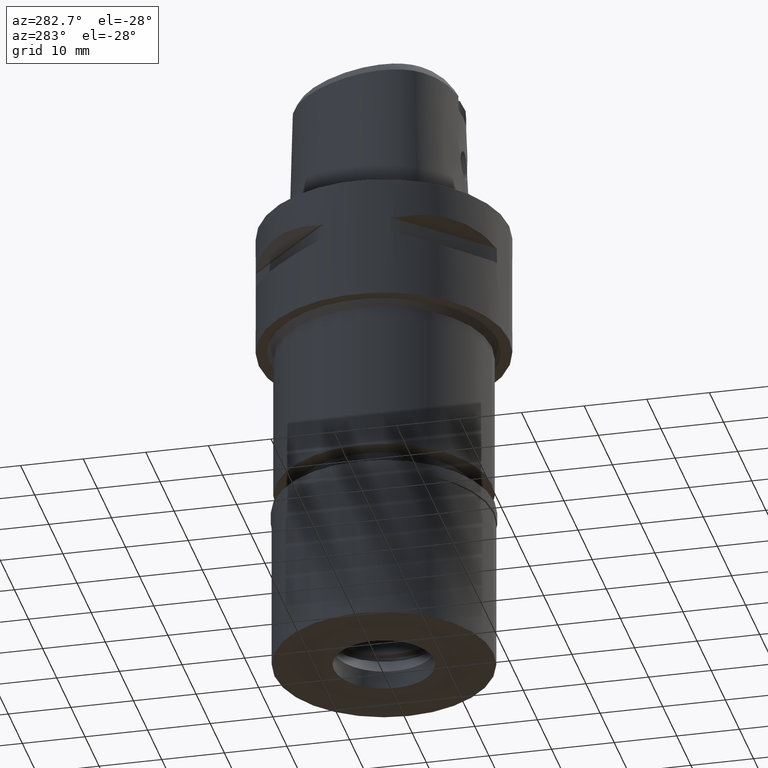
[diagram: clean part render]
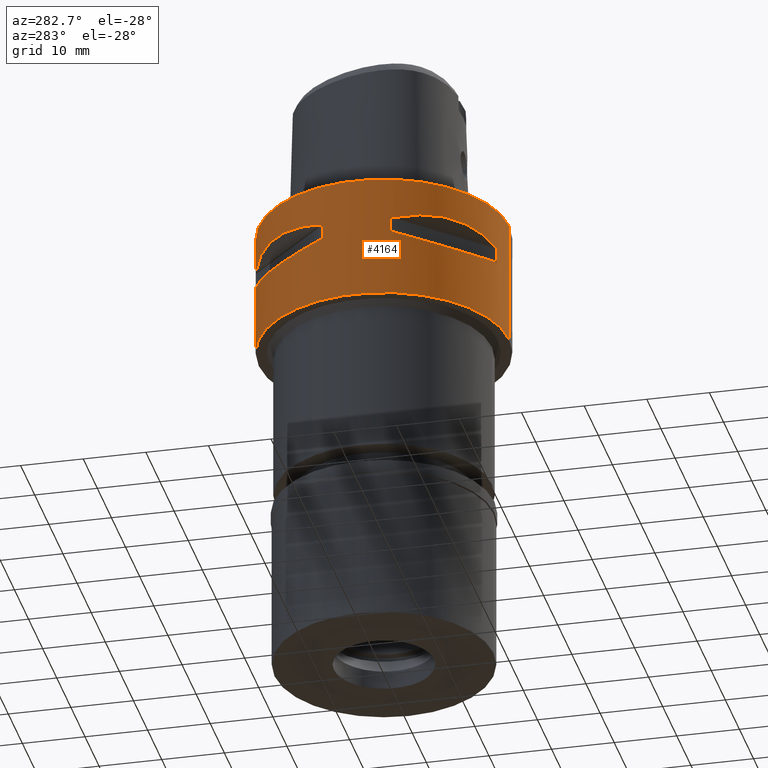
[diagram: same view with one face highlighted and labeled with its STEP entity id]
A machine part, auxiliary view. The second image highlights one B-rep face of the part: STEP entity #4164.
In plain terms, the highlighted cylindrical surface (partial cylindrical patch) has radius 20 mm, axis along (0, 0, -1).
Its self-contained STEP definition (entity closure, byte-faithful):
#16 = VERTEX_POINT ( 'NONE', #1513 ) ;
#75 = VECTOR ( 'NONE', #3698, 1000.000000000000000 ) ;
#76 = CARTESIAN_POINT ( 'NONE',  ( -11.83046278585409539, 16.20025983931430247, -10.49456541975229840 ) ) ;
#125 = CARTESIAN_POINT ( 'NONE',  ( 0.0000000000000000000, 1.263835496719999960E-14, -9.299999999999998934 ) ) ;
#136 = CYLINDRICAL_SURFACE ( 'NONE', #2739, 20.00000000000000000 ) ;
#142 = CARTESIAN_POINT ( 'NONE',  ( -10.52654956716422063, -17.00564674891198891, -10.29104290631413221 ) ) ;
#156 = EDGE_CURVE ( 'NONE', #3569, #4186, #1717, .T. ) ;
#169 = EDGE_CURVE ( 'NONE', #3245, #4186, #3267, .T. ) ;
#199 = EDGE_CURVE ( 'NONE', #3991, #3245, #2844, .T. ) ;
#239 = VERTEX_POINT ( 'NONE', #3964 ) ;
#307 = DIRECTION ( 'NONE',  ( 0.0000000000000000000, 0.0000000000000000000, 1.000000000000000000 ) ) ;
#313 = AXIS2_PLACEMENT_3D ( 'NONE', #125, #4508, #2671 ) ;
#337 = DIRECTION ( 'NONE',  ( 0.0000000000000000000, 0.0000000000000000000, -1.000000000000000000 ) ) ;
#351 = CARTESIAN_POINT ( 'NONE',  ( 0.0000000000000000000, 1.263835496719999960E-14, -9.299999999999998934 ) ) ;
#371 = AXIS2_PLACEMENT_3D ( 'NONE', #351, #1831, #1807 ) ;
#430 = EDGE_CURVE ( 'NONE', #3867, #2170, #3489, .T. ) ;
#440 = CIRCLE ( 'NONE', #371, 20.00000000000000000 ) ;
#462 = CARTESIAN_POINT ( 'NONE',  ( -16.96779488243643641, 10.58740791271516279, -10.30043526206624982 ) ) ;
#482 = CARTESIAN_POINT ( 'NONE',  ( -5.428966298579000593, -19.24906036483000094, -9.299999999999998934 ) ) ;
#518 = DIRECTION ( 'NONE',  ( 0.0000000000000000000, 0.0000000000000000000, -1.000000000000000000 ) ) ;
#523 = CARTESIAN_POINT ( 'NONE',  ( -17.04620345718620200, -10.46079808215881357, -10.28075718178500608 ) ) ;
#527 = CIRCLE ( 'NONE', #4732, 20.00000000000000711 ) ;
#535 = VERTEX_POINT ( 'NONE', #2296 ) ;
#555 = ORIENTED_EDGE ( 'NONE', *, *, #430, .T. ) ;
#612 = VERTEX_POINT ( 'NONE', #2732 ) ;
#618 = EDGE_LOOP ( 'NONE', ( #1867, #1719, #3532, #1725, #1589, #2046, #719, #2837 ) ) ;
#632 = CARTESIAN_POINT ( 'NONE',  ( -19.06685920573999837, 6.037787676659999825, -9.299999999999998934 ) ) ;
#665 = CIRCLE ( 'NONE', #809, 20.00000000000000000 ) ;
#677 = ORIENTED_EDGE ( 'NONE', *, *, #156, .F. ) ;
#685 = DIRECTION ( 'NONE',  ( 0.0000000000000000000, 0.0000000000000000000, -1.000000000000000000 ) ) ;
#710 = CARTESIAN_POINT ( 'NONE',  ( -19.24906036483000094, -5.428966298579000593, -9.299999999999998934 ) ) ;
#719 = ORIENTED_EDGE ( 'NONE', *, *, #1669, .T. ) ;
#754 = CARTESIAN_POINT ( 'NONE',  ( -19.06685920573999837, 6.037787676659999825, -6.700000000000000178 ) ) ;
#777 = CIRCLE ( 'NONE', #1290, 20.00000000000000000 ) ;
#808 = DIRECTION ( 'NONE',  ( -0.3018893838328123858, 0.9533429602871387187, 0.0000000000000000000 ) ) ;
#809 = AXIS2_PLACEMENT_3D ( 'NONE', #1204, #4587, #870 ) ;
#818 = CARTESIAN_POINT ( 'NONE',  ( -17.07309310408707148, -10.41688921769623910, -10.27380911531041008 ) ) ;
#870 = DIRECTION ( 'NONE',  ( -0.9624530182415160784, -0.2714483149290045083, 0.0000000000000000000 ) ) ;
#881 = CARTESIAN_POINT ( 'NONE',  ( -13.59286613331923554, -14.69143800708852154, -10.59808963984202279 ) ) ;
#897 = DIRECTION ( 'NONE',  ( 0.0000000000000000000, -1.000000000000000000, 0.0000000000000000000 ) ) ;
#902 = CARTESIAN_POINT ( 'NONE',  ( -17.00564674891200312, 10.52654956716414603, -10.29104290631410557 ) ) ;
#928 = DIRECTION ( 'NONE',  ( 0.0000000000000000000, 0.0000000000000000000, -1.000000000000000000 ) ) ;
#968 = VECTOR ( 'NONE', #307, 1000.000000000000000 ) ;
#997 = CIRCLE ( 'NONE', #2056, 20.00000000000000711 ) ;
#1012 = CARTESIAN_POINT ( 'NONE',  ( 0.0000000000000000000, 1.263835496719999960E-14, -6.700000000000000178 ) ) ;
#1057 = VERTEX_POINT ( 'NONE', #1118 ) ;
#1118 = CARTESIAN_POINT ( 'NONE',  ( -6.037787676659999825, -19.06685920573999837, -6.700000000000000178 ) ) ;
#1121 = LINE ( 'NONE', #482, #75 ) ;
#1131 = CARTESIAN_POINT ( 'NONE',  ( -9.064227960972592868, 17.89933467640223697, -5.942799019125478033 ) ) ;
#1153 = CARTESIAN_POINT ( 'NONE',  ( -13.04353085700981651, 15.24067460454939038, -10.59804935437078477 ) ) ;
#1168 = CARTESIAN_POINT ( 'NONE',  ( -17.20615142661377206, -10.19668967435975304, -10.23823386088587561 ) ) ;
#1170 = ORIENTED_EDGE ( 'NONE', *, *, #199, .T. ) ;
#1191 = CARTESIAN_POINT ( 'NONE',  ( -6.037787676659999825, -19.06685920573999837, -9.299999999999998934 ) ) ;
#1204 = CARTESIAN_POINT ( 'NONE',  ( 0.0000000000000000000, 1.263835496719999960E-14, -6.700000000000000178 ) ) ;
#1215 = CARTESIAN_POINT ( 'NONE',  ( -7.974729623730985040, 18.37435100509567221, -9.808037949573455094 ) ) ;
#1219 = CARTESIAN_POINT ( 'NONE',  ( -16.23560874352833139, -11.78776565399050646, -5.510106948687923278 ) ) ;
#1220 = EDGE_CURVE ( 'NONE', #1299, #535, #3932, .T. ) ;
#1238 = EDGE_CURVE ( 'NONE', #3867, #2199, #3461, .T. ) ;
#1251 = CARTESIAN_POINT ( 'NONE',  ( 0.0000000000000000000, 1.263835496719999960E-14, 1.110223024624999873E-14 ) ) ;
#1260 = CARTESIAN_POINT ( 'NONE',  ( -17.88526274347858447, 9.102657680285229702, -10.06884320373687380 ) ) ;
#1262 = VERTEX_POINT ( 'NONE', #3891 ) ;
#1290 = AXIS2_PLACEMENT_3D ( 'NONE', #1251, #4182, #897 ) ;
#1299 = VERTEX_POINT ( 'NONE', #1676 ) ;
#1304 = FACE_BOUND ( 'NONE', #4502, .T. ) ;
#1317 = CARTESIAN_POINT ( 'NONE',  ( -19.06685920573999837, -6.037787676659999825, -6.700000000000000178 ) ) ;
#1353 = VERTEX_POINT ( 'NONE', #1649 ) ;
#1357 = ORIENTED_EDGE ( 'NONE', *, *, #1238, .F. ) ;
#1374 = DIRECTION ( 'NONE',  ( 0.0000000000000000000, 0.0000000000000000000, 1.000000000000000000 ) ) ;
#1403 = VERTEX_POINT ( 'NONE', #4380 ) ;
#1476 = LINE ( 'NONE', #3929, #968 ) ;
#1513 = CARTESIAN_POINT ( 'NONE',  ( -5.428966298579000593, 19.24906036483000094, -6.700000000000000178 ) ) ;
#1538 = CARTESIAN_POINT ( 'NONE',  ( -11.64036391732772024, -16.27164763637228262, -10.44610182776619567 ) ) ;
#1555 = CARTESIAN_POINT ( 'NONE',  ( -14.69143800708833680, 13.59286613331856408, -10.59808963984166041 ) ) ;
#1577 = CARTESIAN_POINT ( 'NONE',  ( -6.037787676656000357, 19.06685920573999837, -9.299999999999998934 ) ) ;
#1589 = ORIENTED_EDGE ( 'NONE', *, *, #4591, .T. ) ;
#1604 = CARTESIAN_POINT ( 'NONE',  ( -17.03197491928961327, -10.48392761238962478, -10.28439099668888623 ) ) ;
#1622 = CARTESIAN_POINT ( 'NONE',  ( -10.58740791271525161, -16.96779488243645773, -10.30043526206630844 ) ) ;
#1629 = CARTESIAN_POINT ( 'NONE',  ( -5.428966298580000682, -19.24906036483000094, -9.299999999999998934 ) ) ;
#1648 = VECTOR ( 'NONE', #3256, 1000.000000000000000 ) ;
#1649 = CARTESIAN_POINT ( 'NONE',  ( -19.06685920573999837, -6.037787676659999825, -6.700000000000000178 ) ) ;
#1654 = CARTESIAN_POINT ( 'NONE',  ( -15.24842641771629914, -13.03584482974558689, -5.401930550046035506 ) ) ;
#1669 = EDGE_CURVE ( 'NONE', #1403, #1353, #665, .T. ) ;
#1676 = CARTESIAN_POINT ( 'NONE',  ( -19.06685920573999837, -6.037787676656000357, -9.299999999999998934 ) ) ;
#1703 = LINE ( 'NONE', #2307, #3417 ) ;
#1717 = LINE ( 'NONE', #4313, #4701 ) ;
#1719 = ORIENTED_EDGE ( 'NONE', *, *, #4441, .F. ) ;
#1725 = ORIENTED_EDGE ( 'NONE', *, *, #1220, .F. ) ;
#1732 = CARTESIAN_POINT ( 'NONE',  ( -19.06685920573999837, 6.037787676659999825, -9.299999999999998934 ) ) ;
#1734 = B_SPLINE_CURVE_WITH_KNOTS ( 'NONE', 3,
 ( #1317, #2333, #4219, #1219, #1654, #3474, #4244, #2719, #2410, #4147 ),
 .UNSPECIFIED., .F., .F.,
 ( 4, 2, 2, 2, 4 ),
 ( 0.0000000000000000000, 0.2500000000000000000, 0.5000000000000000000, 0.7500000000000000000, 1.000000000000000000 ),
 .UNSPECIFIED. ) ;
#1778 = DIRECTION ( 'NONE',  ( 0.0000000000000000000, 0.0000000000000000000, 1.000000000000000000 ) ) ;
#1790 = CARTESIAN_POINT ( 'NONE',  ( 0.0000000000000000000, 1.263835496719999960E-14, -20.00000000000000000 ) ) ;
#1807 = DIRECTION ( 'NONE',  ( -0.2714483149290045083, -0.9624530182415160784, 0.0000000000000000000 ) ) ;
#1823 = CARTESIAN_POINT ( 'NONE',  ( -11.78776565403157051, 16.23560874349853833, -5.510106948674475369 ) ) ;
#1831 = DIRECTION ( 'NONE',  ( 0.0000000000000000000, 0.0000000000000000000, -1.000000000000000000 ) ) ;
#1867 = ORIENTED_EDGE ( 'NONE', *, *, #4690, .T. ) ;
#1911 = CARTESIAN_POINT ( 'NONE',  ( -16.92907764914576774, 10.64933512883065347, -10.30991069787617676 ) ) ;
#1926 = CARTESIAN_POINT ( 'NONE',  ( -19.06685920573999837, -6.037787676656000357, -9.299999999999998934 ) ) ;
#1948 = CARTESIAN_POINT ( 'NONE',  ( -18.81740308416140905, -6.825550513455381996, -9.519762796231688640 ) ) ;
#1968 = CARTESIAN_POINT ( 'NONE',  ( 0.0000000000000000000, 1.263835496719999960E-14, -6.700000000000000178 ) ) ;
#2046 = ORIENTED_EDGE ( 'NONE', *, *, #3654, .F. ) ;
#2056 = AXIS2_PLACEMENT_3D ( 'NONE', #1968, #4540, #3442 ) ;
#2058 = CARTESIAN_POINT ( 'NONE',  ( -5.428966298579000593, 19.24906036483000094, -9.299999999999998934 ) ) ;
#2084 = VERTEX_POINT ( 'NONE', #4383 ) ;
#2114 = AXIS2_PLACEMENT_3D ( 'NONE', #1012, #1778, #3242 ) ;
#2170 = VERTEX_POINT ( 'NONE', #2058 ) ;
#2175 = CARTESIAN_POINT ( 'NONE',  ( -15.24842641774014318, 13.03584482972176772, -5.401917027256927462 ) ) ;
#2194 = DIRECTION ( 'NONE',  ( 0.0000000000000000000, 0.0000000000000000000, -1.000000000000000000 ) ) ;
#2199 = VERTEX_POINT ( 'NONE', #1732 ) ;
#2264 = CARTESIAN_POINT ( 'NONE',  ( -17.73693809362544371, -9.258624582134340031, -10.07196314004953308 ) ) ;
#2283 = CARTESIAN_POINT ( 'NONE',  ( -19.06685920573999837, 6.037787676659999825, -6.700000000000000178 ) ) ;
#2292 = EDGE_CURVE ( 'NONE', #239, #2514, #4715, .T. ) ;
#2296 = CARTESIAN_POINT ( 'NONE',  ( -6.037787676659999825, -19.06685920573999837, -9.299999999999998934 ) ) ;
#2303 = CARTESIAN_POINT ( 'NONE',  ( -17.38810193308528795, -9.886368560434451780, -10.18582677984705676 ) ) ;
#2307 = CARTESIAN_POINT ( 'NONE',  ( -19.24906036483000094, -5.428966298579000593, -6.700000000000000178 ) ) ;
#2328 = CARTESIAN_POINT ( 'NONE',  ( -17.11329306682763018, -10.35096251251622235, -10.26330621669029242 ) ) ;
#2333 = CARTESIAN_POINT ( 'NONE',  ( -18.57571147348060947, -7.588793634759330331, -6.267314691167783280 ) ) ;
#2360 = DIRECTION ( 'NONE',  ( -0.3018893838328123858, -0.9533429602871387187, 0.0000000000000000000 ) ) ;
#2410 = CARTESIAN_POINT ( 'NONE',  ( -7.588842109437766048, -18.57569612329560726, -6.267301168149964852 ) ) ;
#2415 = CIRCLE ( 'NONE', #4063, 20.00000000000000000 ) ;
#2463 = ORIENTED_EDGE ( 'NONE', *, *, #169, .T. ) ;
#2466 = EDGE_LOOP ( 'NONE', ( #2463, #677, #3581, #1170 ) ) ;
#2514 = VERTEX_POINT ( 'NONE', #2283 ) ;
#2552 = ORIENTED_EDGE ( 'NONE', *, *, #3567, .F. ) ;
#2579 = CARTESIAN_POINT ( 'NONE',  ( -18.57569612330580711, 7.588842109405629088, -6.267301168158929237 ) ) ;
#2602 = CARTESIAN_POINT ( 'NONE',  ( -16.65304730897246444, 11.07873582669437340, -10.37252388421113025 ) ) ;
#2620 = CARTESIAN_POINT ( 'NONE',  ( -10.19668967435855222, 17.20615142661412733, -10.23823386088551501 ) ) ;
#2654 = CARTESIAN_POINT ( 'NONE',  ( -5.428966298579000593, 19.24906036483000094, -6.700000000000000178 ) ) ;
#2665 = CARTESIAN_POINT ( 'NONE',  ( -10.48392761238963189, 17.03197491928957419, -10.28439099668885959 ) ) ;
#2671 = DIRECTION ( 'NONE',  ( -0.9533429602871387187, -0.3018893838328123858, 0.0000000000000000000 ) ) ;
#2688 = CARTESIAN_POINT ( 'NONE',  ( -10.46079808215863771, 17.04620345718623753, -10.28075718178493858 ) ) ;
#2719 = CARTESIAN_POINT ( 'NONE',  ( -9.064296220490598799, -17.89930010960014428, -5.942778734612195635 ) ) ;
#2732 = CARTESIAN_POINT ( 'NONE',  ( -19.24906036483000094, 5.428966298579000593, -6.700000000000000178 ) ) ;
#2736 = FACE_BOUND ( 'NONE', #618, .T. ) ;
#2739 = AXIS2_PLACEMENT_3D ( 'NONE', #3078, #518, #4566 ) ;
#2742 = CARTESIAN_POINT ( 'NONE',  ( -18.56782271116713900, 7.613705726460239021, -9.739635053952877541 ) ) ;
#2815 = DIRECTION ( 'NONE',  ( 0.0000000000000000000, 0.0000000000000000000, 1.000000000000000000 ) ) ;
#2837 = ORIENTED_EDGE ( 'NONE', *, *, #3596, .T. ) ;
#2844 = LINE ( 'NONE', #3985, #1648 ) ;
#2876 = AXIS2_PLACEMENT_3D ( 'NONE', #1790, #2815, #3937 ) ;
#2928 = CARTESIAN_POINT ( 'NONE',  ( -7.588793634791460185, 18.57571147347045937, -6.267314691158818007 ) ) ;
#2962 = LINE ( 'NONE', #2654, #4263 ) ;
#2969 = EDGE_CURVE ( 'NONE', #16, #2170, #2962, .T. ) ;
#2997 = CARTESIAN_POINT ( 'NONE',  ( -16.27164763637202682, 11.64036391732682141, -10.44610182776571783 ) ) ;
#3039 = CARTESIAN_POINT ( 'NONE',  ( -10.79324770715592585, -16.83802176568588749, -10.33148935319455575 ) ) ;
#3063 = CARTESIAN_POINT ( 'NONE',  ( -10.64933512883080624, -16.92907764914579616, -10.30991069787626735 ) ) ;
#3071 = CARTESIAN_POINT ( 'NONE',  ( 0.0000000000000000000, 20.00000000000000000, 1.110223024624999873E-14 ) ) ;
#3078 = CARTESIAN_POINT ( 'NONE',  ( 0.0000000000000000000, 1.263835496719999960E-14, 3.200000000000000178 ) ) ;
#3088 = CARTESIAN_POINT ( 'NONE',  ( 0.0000000000000000000, 1.263835496719999960E-14, -6.700000000000000178 ) ) ;
#3103 = FACE_OUTER_BOUND ( 'NONE', #2466, .T. ) ;
#3137 = CARTESIAN_POINT ( 'NONE',  ( -16.99353821201610160, 10.54606745823076075, -10.29406776248773525 ) ) ;
#3241 = CARTESIAN_POINT ( 'NONE',  ( -17.89930010962307705, 9.064296220445354990, -5.942778734625640880 ) ) ;
#3242 = DIRECTION ( 'NONE',  ( -0.2714483149290045083, 0.9624530182415160784, 0.0000000000000000000 ) ) ;
#3245 = VERTEX_POINT ( 'NONE', #3541 ) ;
#3256 = DIRECTION ( 'NONE',  ( 0.0000000000000000000, 0.0000000000000000000, -1.000000000000000000 ) ) ;
#3267 = CIRCLE ( 'NONE', #2876, 20.00000000000000000 ) ;
#3279 = CARTESIAN_POINT ( 'NONE',  ( 0.0000000000000000000, -20.00000000000000000, 1.110223024624999873E-14 ) ) ;
#3320 = CARTESIAN_POINT ( 'NONE',  ( -6.037787676659999825, 19.06685920573999837, -6.700000000000000178 ) ) ;
#3361 = CARTESIAN_POINT ( 'NONE',  ( -9.258624582130485337, 17.73693809362665164, -10.07196314004843352 ) ) ;
#3402 = CARTESIAN_POINT ( 'NONE',  ( -10.41688921769588561, 17.07309310408716030, -10.27380911531028751 ) ) ;
#3411 = AXIS2_PLACEMENT_3D ( 'NONE', #4423, #2194, #808 ) ;
#3417 = VECTOR ( 'NONE', #928, 1000.000000000000000 ) ;
#3426 = CARTESIAN_POINT ( 'NONE',  ( -12.72622750481284903, -15.46304525447651734, -10.55929324096001487 ) ) ;
#3442 = DIRECTION ( 'NONE',  ( -0.9533429602871387187, 0.3018893838328123858, 0.0000000000000000000 ) ) ;
#3446 = CARTESIAN_POINT ( 'NONE',  ( -11.07873582669489920, -16.65304730897261010, -10.37252388421141269 ) ) ;
#3461 = B_SPLINE_CURVE_WITH_KNOTS ( 'NONE', 3,
 ( #1577, #4499, #1215, #3361, #4436, #2620, #4123, #3402, #2688, #2665, #76, #1153, #1555, #4098, #2997, #2602, #3749, #1911, #462, #3137, #902, #1260, #2742, #632 ),
 .UNSPECIFIED., .F., .F.,
 ( 4, 1, 1, 1, 1, 1, 2, 2, 2, 1, 1, 1, 1, 1, 2, 2, 4 ),
 ( 0.0000000000000000000, 0.1249999999999983069, 0.1874999999999973632, 0.2187499999999970857, 0.2343749999999968359, 0.2421874999999966138, 0.2460937499999967526, 0.2499999999999968914, 0.4999999999999934497, 0.6249999999999920064, 0.6874999999999913403, 0.7187499999999911182, 0.7343749999999910072, 0.7421874999999911182, 0.7460937499999913403, 0.7499999999999914513, 1.000000000000000000 ),
 .UNSPECIFIED. ) ;
#3474 = CARTESIAN_POINT ( 'NONE',  ( -13.03584482974559400, -15.24842641771629559, -5.401917027247962189 ) ) ;
#3489 = CIRCLE ( 'NONE', #3411, 20.00000000000000711 ) ;
#3525 = VERTEX_POINT ( 'NONE', #710 ) ;
#3532 = ORIENTED_EDGE ( 'NONE', *, *, #3554, .T. ) ;
#3541 = CARTESIAN_POINT ( 'NONE',  ( 0.0000000000000000000, 20.00000000000000000, -20.00000000000000000 ) ) ;
#3551 = ORIENTED_EDGE ( 'NONE', *, *, #3850, .T. ) ;
#3554 = EDGE_CURVE ( 'NONE', #4669, #535, #440, .T. ) ;
#3567 = EDGE_CURVE ( 'NONE', #1262, #612, #1476, .T. ) ;
#3569 = VERTEX_POINT ( 'NONE', #3279 ) ;
#3581 = ORIENTED_EDGE ( 'NONE', *, *, #4195, .T. ) ;
#3590 = CIRCLE ( 'NONE', #2114, 20.00000000000000000 ) ;
#3596 = EDGE_CURVE ( 'NONE', #1353, #1057, #1734, .T. ) ;
#3640 = ORIENTED_EDGE ( 'NONE', *, *, #4183, .T. ) ;
#3654 = EDGE_CURVE ( 'NONE', #1403, #3525, #1703, .T. ) ;
#3698 = DIRECTION ( 'NONE',  ( 0.0000000000000000000, 0.0000000000000000000, 1.000000000000000000 ) ) ;
#3728 = CARTESIAN_POINT ( 'NONE',  ( -7.613705726455988199, -18.56782271116848904, -9.739635053951699817 ) ) ;
#3738 = DIRECTION ( 'NONE',  ( 0.0000000000000000000, 0.0000000000000000000, -1.000000000000000000 ) ) ;
#3748 = EDGE_CURVE ( 'NONE', #16, #239, #3590, .T. ) ;
#3749 = CARTESIAN_POINT ( 'NONE',  ( -16.83802176568580933, 10.79324770715564696, -10.33148935319440120 ) ) ;
#3771 = CARTESIAN_POINT ( 'NONE',  ( -16.20025983931274283, -11.83046278585393729, -10.49456541975160384 ) ) ;
#3790 = CARTESIAN_POINT ( 'NONE',  ( -15.24067460454800660, -13.04353085700942927, -10.59804935437007423 ) ) ;
#3831 = CARTESIAN_POINT ( 'NONE',  ( 0.0000000000000000000, -20.00000000000000000, -20.00000000000000000 ) ) ;
#3850 = EDGE_CURVE ( 'NONE', #1262, #2199, #2415, .T. ) ;
#3867 = VERTEX_POINT ( 'NONE', #4676 ) ;
#3891 = CARTESIAN_POINT ( 'NONE',  ( -19.24906036483000094, 5.428966298580000682, -9.299999999999998934 ) ) ;
#3929 = CARTESIAN_POINT ( 'NONE',  ( -19.24906036483000094, 5.428966298579000593, -9.299999999999998934 ) ) ;
#3932 = B_SPLINE_CURVE_WITH_KNOTS ( 'NONE', 3,
 ( #1926, #1948, #4454, #2264, #2303, #1168, #2328, #818, #523, #1604, #3771, #3790, #881, #3426, #1538, #3446, #3039, #3063, #1622, #4525, #142, #4478, #3728, #1191 ),
 .UNSPECIFIED., .F., .F.,
 ( 4, 1, 1, 1, 1, 1, 2, 2, 2, 1, 1, 1, 1, 1, 2, 2, 4 ),
 ( 0.0000000000000000000, 0.1250000000000066058, 0.1875000000000100198, 0.2187500000000118239, 0.2343750000000126010, 0.2421875000000127676, 0.2460937500000127398, 0.2500000000000126565, 0.5000000000000093259, 0.6250000000000077716, 0.6875000000000069944, 0.7187500000000065503, 0.7343750000000064393, 0.7421875000000064393, 0.7460937500000063283, 0.7500000000000062172, 1.000000000000000000 ),
 .UNSPECIFIED. ) ;
#3937 = DIRECTION ( 'NONE',  ( 0.0000000000000000000, 1.000000000000000000, 0.0000000000000000000 ) ) ;
#3945 = ORIENTED_EDGE ( 'NONE', *, *, #2969, .F. ) ;
#3964 = CARTESIAN_POINT ( 'NONE',  ( -6.037787676659999825, 19.06685920573999837, -6.700000000000000178 ) ) ;
#3985 = CARTESIAN_POINT ( 'NONE',  ( 0.0000000000000000000, 20.00000000000000000, 0.0000000000000000000 ) ) ;
#3991 = VERTEX_POINT ( 'NONE', #3071 ) ;
#4037 = CARTESIAN_POINT ( 'NONE',  ( -16.23556379045569287, 11.78782756882609917, -5.510086664174642657 ) ) ;
#4063 = AXIS2_PLACEMENT_3D ( 'NONE', #4625, #685, #4300 ) ;
#4098 = CARTESIAN_POINT ( 'NONE',  ( -15.46304525447618694, 12.72622750481166065, -10.55929324095938782 ) ) ;
#4123 = CARTESIAN_POINT ( 'NONE',  ( -10.35096251251560773, 17.11329306682781493, -10.26330621669010057 ) ) ;
#4147 = CARTESIAN_POINT ( 'NONE',  ( -6.037787676659999825, -19.06685920573999837, -6.700000000000000178 ) ) ;
#4164 = ADVANCED_FACE ( 'NONE', ( #3103, #1304, #2736 ), #136, .T. ) ;
#4167 = ORIENTED_EDGE ( 'NONE', *, *, #3748, .T. ) ;
#4182 = DIRECTION ( 'NONE',  ( 0.0000000000000000000, 0.0000000000000000000, -1.000000000000000000 ) ) ;
#4183 = EDGE_CURVE ( 'NONE', #2514, #612, #997, .T. ) ;
#4186 = VERTEX_POINT ( 'NONE', #3831 ) ;
#4195 = EDGE_CURVE ( 'NONE', #3569, #3991, #777, .T. ) ;
#4219 = CARTESIAN_POINT ( 'NONE',  ( -17.89933467642513776, -9.064227960927333072, -5.942799019138925942 ) ) ;
#4244 = CARTESIAN_POINT ( 'NONE',  ( -11.78782756886713301, -16.23556379042587849, -5.510086664161198300 ) ) ;
#4263 = VECTOR ( 'NONE', #3738, 1000.000000000000000 ) ;
#4300 = DIRECTION ( 'NONE',  ( -0.9624530182415160784, 0.2714483149290045083, 0.0000000000000000000 ) ) ;
#4313 = CARTESIAN_POINT ( 'NONE',  ( 0.0000000000000000000, -20.00000000000000000, 0.0000000000000000000 ) ) ;
#4380 = CARTESIAN_POINT ( 'NONE',  ( -19.24906036483000094, -5.428966298580000682, -6.700000000000000178 ) ) ;
#4383 = CARTESIAN_POINT ( 'NONE',  ( -5.428966298579000593, -19.24906036483000094, -6.700000000000000178 ) ) ;
#4385 = CARTESIAN_POINT ( 'NONE',  ( -13.03584482972175884, 15.24842641774015561, -5.401930550037071121 ) ) ;
#4423 = CARTESIAN_POINT ( 'NONE',  ( 0.0000000000000000000, 1.263835496719999960E-14, -9.299999999999998934 ) ) ;
#4436 = CARTESIAN_POINT ( 'NONE',  ( -9.886368560432201136, 17.38810193308599850, -10.18582677984641549 ) ) ;
#4441 = EDGE_CURVE ( 'NONE', #4669, #2084, #1121, .T. ) ;
#4454 = CARTESIAN_POINT ( 'NONE',  ( -18.37435100509406638, -7.974729623736128481, -9.808037949574913483 ) ) ;
#4478 = CARTESIAN_POINT ( 'NONE',  ( -9.102657680280989538, -17.88526274347993450, -10.06884320373569608 ) ) ;
#4480 = ORIENTED_EDGE ( 'NONE', *, *, #2292, .T. ) ;
#4499 = CARTESIAN_POINT ( 'NONE',  ( -6.825550513452456336, 18.81740308416231500, -9.519762796230851976 ) ) ;
#4502 = EDGE_LOOP ( 'NONE', ( #3640, #2552, #3551, #1357, #555, #3945, #4167, #4480 ) ) ;
#4508 = DIRECTION ( 'NONE',  ( 0.0000000000000000000, 0.0000000000000000000, -1.000000000000000000 ) ) ;
#4525 = CARTESIAN_POINT ( 'NONE',  ( -10.54606745823081049, -16.99353821201611936, -10.29406776248777078 ) ) ;
#4540 = DIRECTION ( 'NONE',  ( 0.0000000000000000000, 0.0000000000000000000, 1.000000000000000000 ) ) ;
#4566 = DIRECTION ( 'NONE',  ( 0.0000000000000000000, -1.000000000000000000, 0.0000000000000000000 ) ) ;
#4587 = DIRECTION ( 'NONE',  ( 0.0000000000000000000, 0.0000000000000000000, 1.000000000000000000 ) ) ;
#4591 = EDGE_CURVE ( 'NONE', #1299, #3525, #4652, .T. ) ;
#4625 = CARTESIAN_POINT ( 'NONE',  ( 0.0000000000000000000, 1.263835496719999960E-14, -9.299999999999998934 ) ) ;
#4652 = CIRCLE ( 'NONE', #313, 20.00000000000000711 ) ;
#4669 = VERTEX_POINT ( 'NONE', #1629 ) ;
#4676 = CARTESIAN_POINT ( 'NONE',  ( -6.037787676656000357, 19.06685920573999837, -9.299999999999998934 ) ) ;
#4690 = EDGE_CURVE ( 'NONE', #1057, #2084, #527, .T. ) ;
#4701 = VECTOR ( 'NONE', #337, 1000.000000000000000 ) ;
#4715 = B_SPLINE_CURVE_WITH_KNOTS ( 'NONE', 3,
 ( #3320, #2928, #1131, #1823, #4385, #2175, #4037, #3241, #2579, #754 ),
 .UNSPECIFIED., .F., .F.,
 ( 4, 2, 2, 2, 4 ),
 ( 0.0000000000000000000, 0.2500000000000000000, 0.5000000000000000000, 0.7500000000000000000, 1.000000000000000000 ),
 .UNSPECIFIED. ) ;
#4732 = AXIS2_PLACEMENT_3D ( 'NONE', #3088, #1374, #2360 ) ;